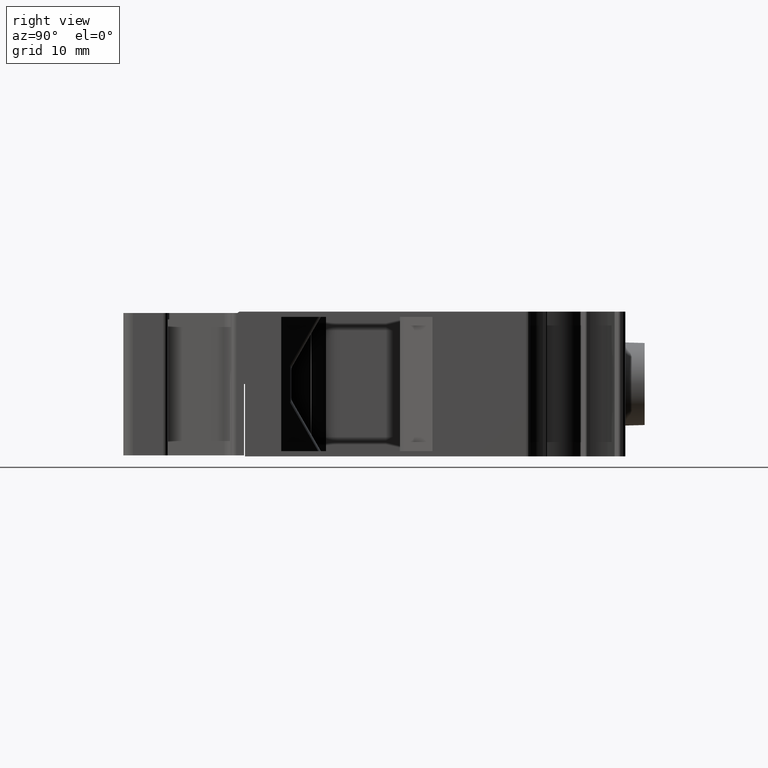
[diagram: clean part render]
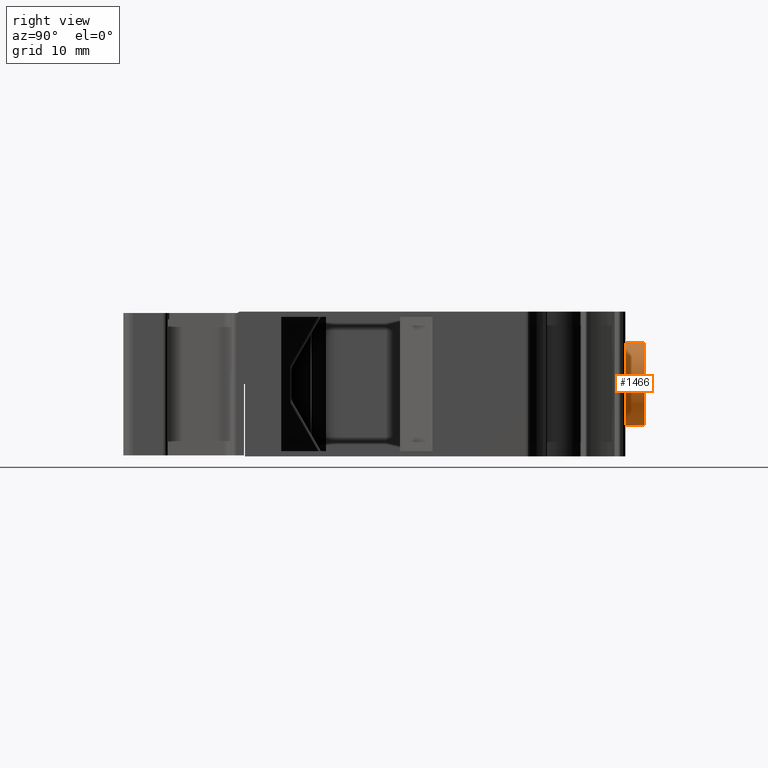
[diagram: same view with one face highlighted and labeled with its STEP entity id]
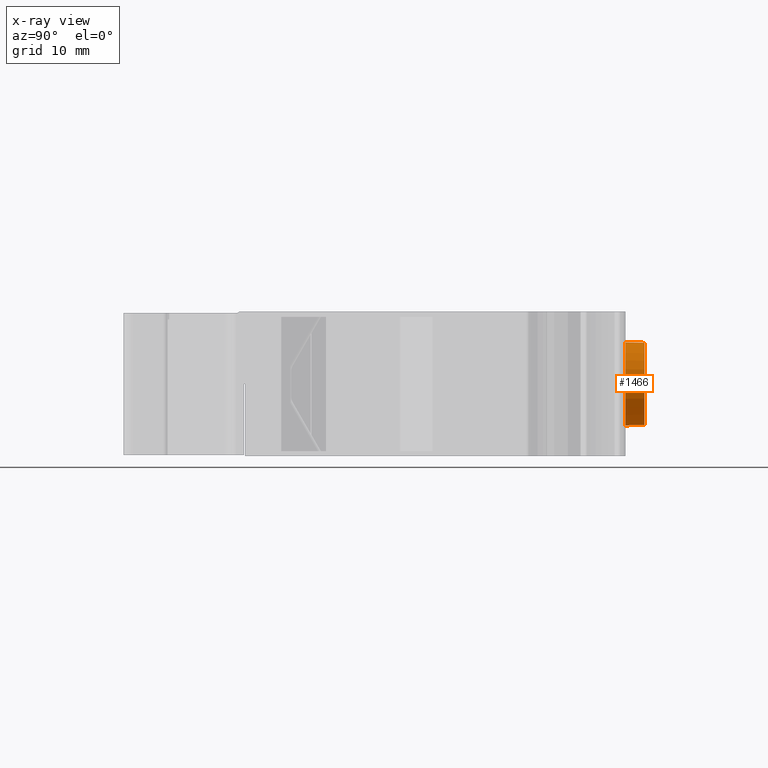
[diagram: x-ray of the same camera — body ghosted, the highlighted face saturated]
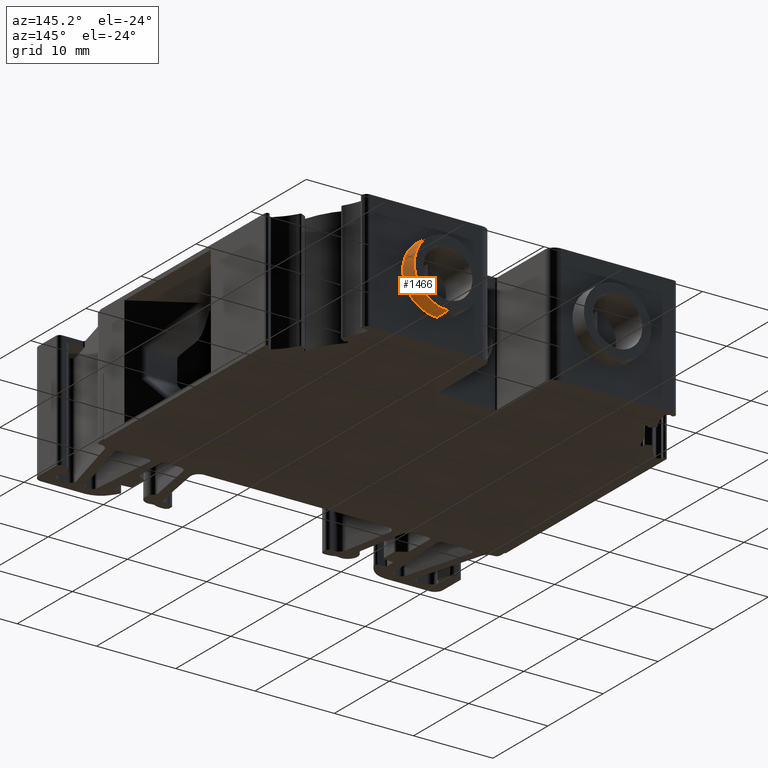
[diagram: same view with one face highlighted and labeled with its STEP entity id]
A machine part, right view. The second image highlights one B-rep face of the part: STEP entity #1466.
The next image is the same camera in x-ray: the body ghosted, the highlighted face saturated — about 0% of this face is hidden behind the body in this view.
A second angle (auxiliary view) of the same face is appended — the face is thin or edge-on in the first view.
In plain terms, the highlighted conical surface has half-angle 1.5 deg.
Its self-contained STEP definition (entity closure, byte-faithful):
#698 = CONICAL_SURFACE ( 'NONE', #702, 4.262757020242203200, 0.02617993877994019200 ) ;
#702 = AXIS2_PLACEMENT_3D ( 'NONE', #3671, #3685, #3672 ) ;
#1466 = ADVANCED_FACE ( 'NONE', ( #3670 ), #698, .T. ) ;
#3670 = FACE_OUTER_BOUND ( 'NONE', #10886, .T. ) ;
#3671 = CARTESIAN_POINT ( 'NONE',  ( -296.7193071656955100, 332.4196754174015500, -98.29017196370050200 ) ) ;
#3672 = DIRECTION ( 'NONE',  ( -1.041788700930531000E-013, 2.604471752326327600E-014, 1.000000000000000000 ) ) ;
#3685 = DIRECTION ( 'NONE',  ( -6.729585212727059800E-028, -1.000000000000000000, 2.701880337695874800E-014 ) ) ;
#5256 = EDGE_CURVE ( 'NONE', #16994, #16985, #5644, .T. ) ;
#5261 = EDGE_CURVE ( 'NONE', #17010, #17040, #5650, .T. ) ;
#5347 = EDGE_CURVE ( 'NONE', #17010, #16994, #20927, .T. ) ;
#5364 = EDGE_CURVE ( 'NONE', #17040, #16985, #20930, .T. ) ;
#5620 = DIRECTION ( 'NONE',  ( 2.677865636231323800E-015, -0.9996573249755573700, -0.02617694830787138300 ) ) ;
#5622 = CARTESIAN_POINT ( 'NONE',  ( -296.7193071656959700, 332.4196754174016600, -94.02741494345829700 ) ) ;
#5637 = CARTESIAN_POINT ( 'NONE',  ( -296.7193071656950600, 332.4196754174014400, -102.5529289839427100 ) ) ;
#5638 = DIRECTION ( 'NONE',  ( -2.681071387828340200E-015, -0.9996573249755558200, 0.02617694830792539900 ) ) ;
#5644 = LINE ( 'NONE', #5637, #20765 ) ;
#5650 = LINE ( 'NONE', #5622, #20751 ) ;
#10009 = CARTESIAN_POINT ( 'NONE',  ( -296.7193071656950600, 330.9065869432467900, -102.5925506000541700 ) ) ;
#10018 = CARTESIAN_POINT ( 'NONE',  ( -296.7193071656959700, 332.9065869432475900, -94.04016517048525300 ) ) ;
#10031 = CARTESIAN_POINT ( 'NONE',  ( -296.7193071656959700, 330.9065869432471300, -93.98779332734677900 ) ) ;
#10033 = CARTESIAN_POINT ( 'NONE',  ( -296.7193071656950600, 332.9065869432473600, -102.5401787569157600 ) ) ;
#10518 = ORIENTED_EDGE ( 'NONE', *, *, #5261, .T. ) ;
#10532 = ORIENTED_EDGE ( 'NONE', *, *, #5364, .T. ) ;
#10552 = ORIENTED_EDGE ( 'NONE', *, *, #5347, .F. ) ;
#10555 = ORIENTED_EDGE ( 'NONE', *, *, #5256, .F. ) ;
#10886 = EDGE_LOOP ( 'NONE', ( #10555, #10552, #10518, #10532 ) ) ;
#16985 = VERTEX_POINT ( 'NONE', #10009 ) ;
#16994 = VERTEX_POINT ( 'NONE', #10033 ) ;
#17010 = VERTEX_POINT ( 'NONE', #10018 ) ;
#17040 = VERTEX_POINT ( 'NONE', #10031 ) ;
#18190 = CARTESIAN_POINT ( 'NONE',  ( -296.7193071656955100, 332.9065869432474800, -98.29017196370050200 ) ) ;
#18191 = DIRECTION ( 'NONE',  ( 0.0000000000000000000, -2.612285294220058200E-014, -1.000000000000000000 ) ) ;
#18195 = DIRECTION ( 'NONE',  ( 6.729585212727059800E-028, 1.000000000000000000, -2.701880337695874800E-014 ) ) ;
#18252 = DIRECTION ( 'NONE',  ( 1.779906783249605300E-014, 1.000000000000000000, -4.089659118477140300E-014 ) ) ;
#18264 = CARTESIAN_POINT ( 'NONE',  ( -296.7193071656955100, 330.9065869432469600, -98.29017196370040200 ) ) ;
#18268 = DIRECTION ( 'NONE',  ( 0.0000000000000000000, 3.870729839689618600E-014, 1.000000000000000000 ) ) ;
#20751 = VECTOR ( 'NONE', #5638, 1000.000000000000200 ) ;
#20765 = VECTOR ( 'NONE', #5620, 1000.000000000000000 ) ;
#20901 = AXIS2_PLACEMENT_3D ( 'NONE', #18190, #18195, #18191 ) ;
#20927 = CIRCLE ( 'NONE', #20901, 4.250006793215257900 ) ;
#20930 = CIRCLE ( 'NONE', #20931, 4.302378636353687100 ) ;
#20931 = AXIS2_PLACEMENT_3D ( 'NONE', #18264, #18252, #18268 ) ;